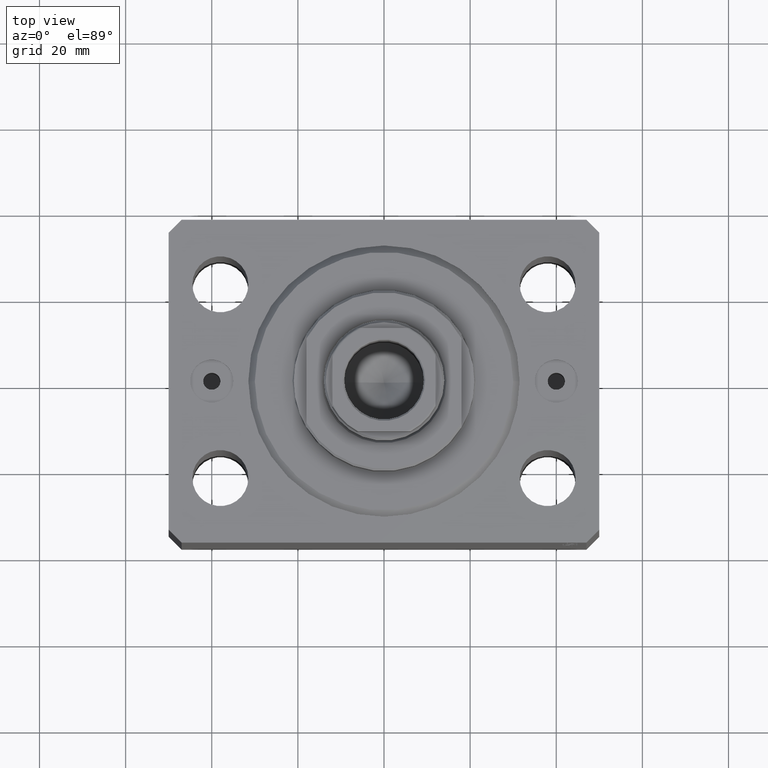
[diagram: clean part render]
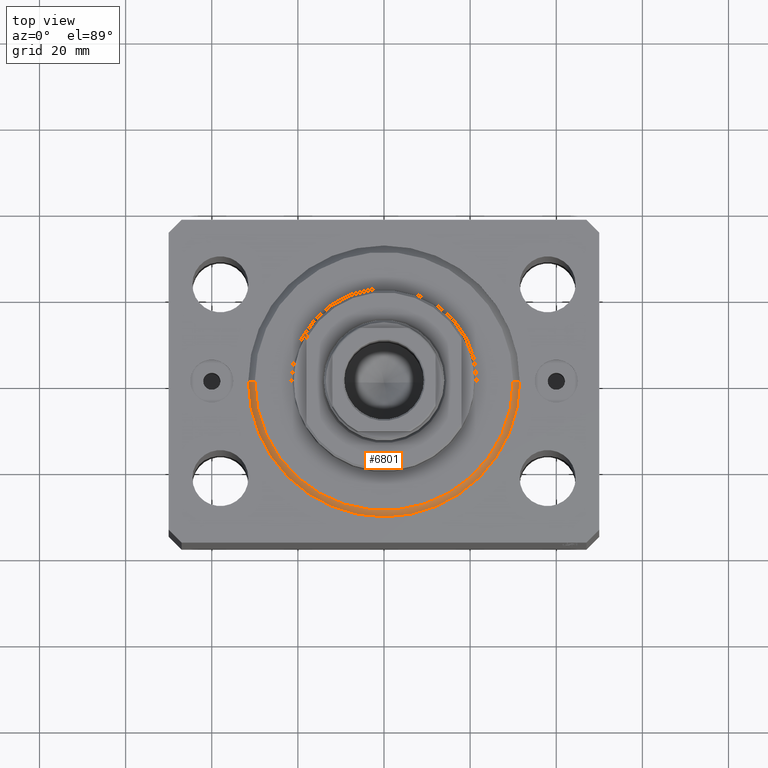
[diagram: same view with one face highlighted and labeled with its STEP entity id]
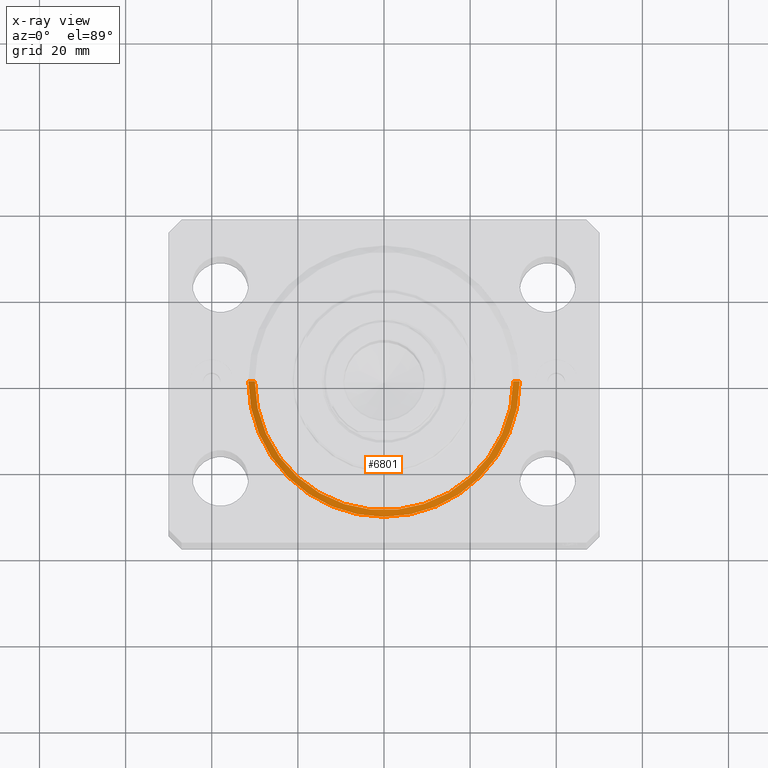
[diagram: x-ray of the same camera — body ghosted, the highlighted face saturated]
A machine part, top view. The second image highlights one B-rep face of the part: STEP entity #6801.
The next image is the same camera in x-ray: the body ghosted, the highlighted face saturated — about 0% of this face is hidden behind the body in this view.
In plain terms, the highlighted conical surface has half-angle 45 deg.
Its self-contained STEP definition (entity closure, byte-faithful):
#4 = ORIENTED_EDGE ( 'NONE', *, *, #20170, .F. ) ;
#1555 = AXIS2_PLACEMENT_3D ( 'NONE', #22057, #12181, #24981 ) ;
#3631 = CARTESIAN_POINT ( 'NONE',  ( 0.000000000000000000, 0.000000000000000000, 0.000000000000000000 ) ) ;
#4152 = CONICAL_SURFACE ( 'NONE', #16355, 31.50000000000000000, 0.7853981633974506105 ) ;
#5317 = ORIENTED_EDGE ( 'NONE', *, *, #21136, .F. ) ;
#5839 = VECTOR ( 'NONE', #19751, 1000.000000000000000 ) ;
#6801 = ADVANCED_FACE ( 'NONE', ( #40100 ), #4152, .T. ) ;
#7157 = VECTOR ( 'NONE', #39022, 1000.000000000000000 ) ;
#11566 = CIRCLE ( 'NONE', #37385, 29.99999999999999289 ) ;
#12082 = ORIENTED_EDGE ( 'NONE', *, *, #21620, .F. ) ;
#12181 = DIRECTION ( 'NONE',  ( -0.000000000000000000, -0.000000000000000000, 1.000000000000000000 ) ) ;
#12463 = CARTESIAN_POINT ( 'NONE',  ( 0.000000000000000000, 0.000000000000000000, 1.500000000000001332 ) ) ;
#12719 = EDGE_LOOP ( 'NONE', ( #5317, #4, #22315, #12082 ) ) ;
#13054 = CIRCLE ( 'NONE', #1555, 31.50000000000000000 ) ;
#14117 = VERTEX_POINT ( 'NONE', #36490 ) ;
#14356 = CARTESIAN_POINT ( 'NONE',  ( 29.99999999999999289, 0.000000000000000000, 0.000000000000000000 ) ) ;
#16355 = AXIS2_PLACEMENT_3D ( 'NONE', #12463, #26165, #36507 ) ;
#19751 = DIRECTION ( 'NONE',  ( -0.7071067811865491270, 8.659560562354952580E-17, 0.7071067811865459074 ) ) ;
#20170 = EDGE_CURVE ( 'NONE', #35655, #28434, #11566, .T. ) ;
#21136 = EDGE_CURVE ( 'NONE', #28434, #14117, #43359, .T. ) ;
#21620 = EDGE_CURVE ( 'NONE', #14117, #32010, #13054, .T. ) ;
#22057 = CARTESIAN_POINT ( 'NONE',  ( 0.000000000000000000, 0.000000000000000000, 1.500000000000001332 ) ) ;
#22315 = ORIENTED_EDGE ( 'NONE', *, *, #33257, .T. ) ;
#22456 = CARTESIAN_POINT ( 'NONE',  ( -31.50000000000000000, 3.857637417314162689E-15, 1.500000000000001332 ) ) ;
#24981 = DIRECTION ( 'NONE',  ( 1.000000000000000000, 0.000000000000000000, 0.000000000000000000 ) ) ;
#26165 = DIRECTION ( 'NONE',  ( -0.000000000000000000, -0.000000000000000000, 1.000000000000000000 ) ) ;
#28434 = VERTEX_POINT ( 'NONE', #39453 ) ;
#32010 = VERTEX_POINT ( 'NONE', #42445 ) ;
#32960 = CARTESIAN_POINT ( 'NONE',  ( 31.50000000000000000, 0.000000000000000000, 1.500000000000001332 ) ) ;
#33257 = EDGE_CURVE ( 'NONE', #35655, #32010, #36330, .T. ) ;
#35655 = VERTEX_POINT ( 'NONE', #14356 ) ;
#36330 = LINE ( 'NONE', #32960, #7157 ) ;
#36490 = CARTESIAN_POINT ( 'NONE',  ( -31.50000000000000000, 0.000000000000000000, 1.500000000000001332 ) ) ;
#36507 = DIRECTION ( 'NONE',  ( 1.000000000000000000, 0.000000000000000000, 0.000000000000000000 ) ) ;
#37385 = AXIS2_PLACEMENT_3D ( 'NONE', #3631, #41170, #44322 ) ;
#39022 = DIRECTION ( 'NONE',  ( 0.7071067811865491270, 0.000000000000000000, 0.7071067811865459074 ) ) ;
#39453 = CARTESIAN_POINT ( 'NONE',  ( -29.99999999999999289, 3.765788907378110539E-15, 0.000000000000000000 ) ) ;
#40100 = FACE_OUTER_BOUND ( 'NONE', #12719, .T. ) ;
#41170 = DIRECTION ( 'NONE',  ( -0.000000000000000000, -0.000000000000000000, -1.000000000000000000 ) ) ;
#42445 = CARTESIAN_POINT ( 'NONE',  ( 31.50000000000000000, 3.857637417314162689E-15, 1.500000000000001332 ) ) ;
#43359 = LINE ( 'NONE', #22456, #5839 ) ;
#44322 = DIRECTION ( 'NONE',  ( 1.000000000000000000, 0.000000000000000000, 0.000000000000000000 ) ) ;